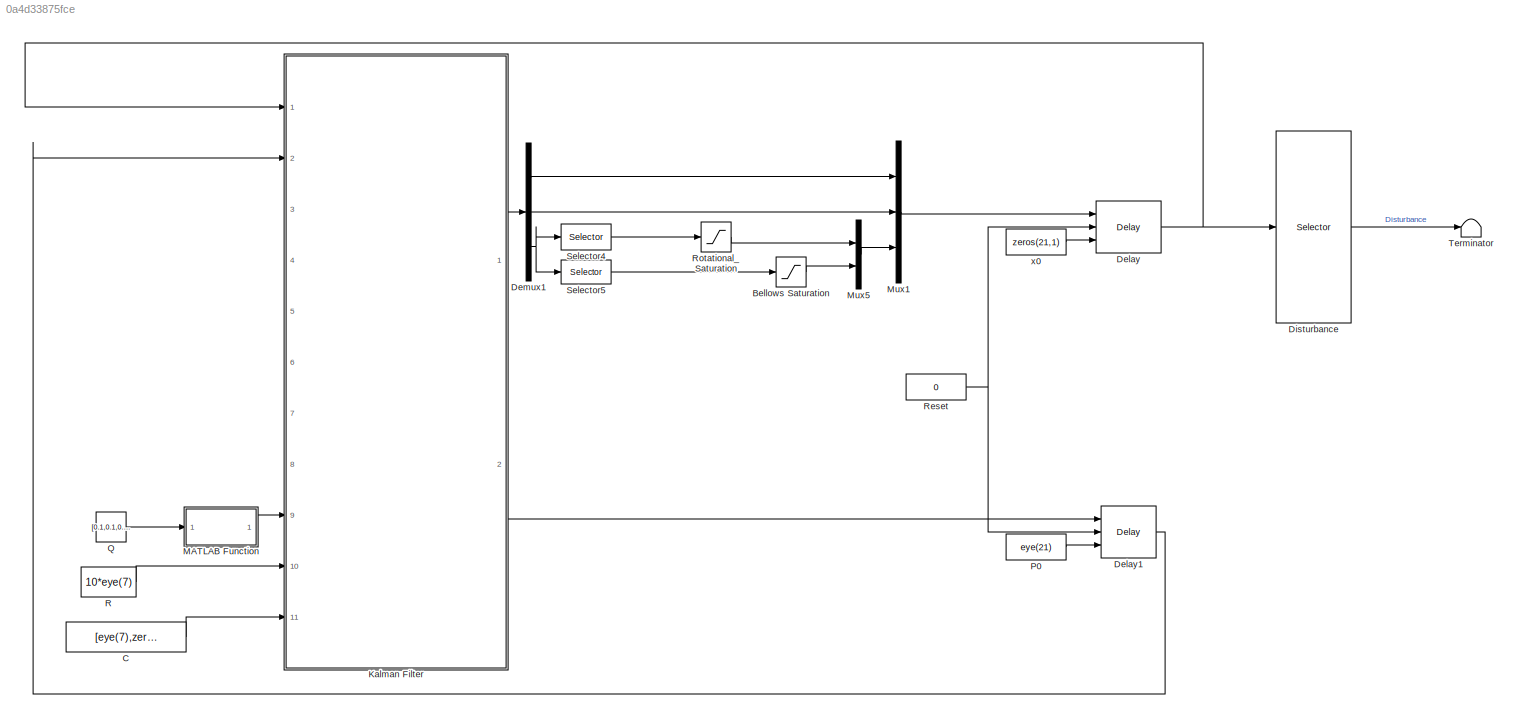
MODEL slx_0a4d33875fce
KIND model
CONFIG AbsTol = auto
CONFIG EnableMultiTasking = off
CONFIG FixedStep = 0.001
CONFIG MaxStep = auto
CONFIG MinStep = auto
CONFIG PostLoadFcn = , if any(exist('dsrtsu_mdlpostloadfcn', 'file') == [2, 3, 6]), try dsrtsu_mdlpostloadfcn('Execute', bdroot); catch fprintf('Error in PostLoadFcn (dsrtsu_mdlpostloadfcn) for model "%s":\n %s\n', bdroot, lasterr); end, end, \n
CONFIG RelTol = 1e-3
CONFIG SampleTimeConstraint = Unconstrained
CONFIG Solver = ode1
CONFIG SolverName = ode1
CONFIG StartTime = 0.0
CONFIG StopTime = Inf
BLOCK [Saturate] Bellows Saturation
  InputPortMap = u0
  LowerLimit = -1
  Ports = [1, 1]
  UpperLimit = 1
BLOCK [Constant] C
  Value = [eye(7),zeros(7,14)]
BLOCK [Delay] Delay
  DelayLength = 1
  ExternalReset = Rising
  InitialConditionSource = Input port
  InputPortMap = u0,r5,p4
  Ports = [3, 1]
BLOCK [Delay] Delay1
  DelayLength = 1
  ExternalReset = Rising
  InitialConditionSource = Input port
  InputPortMap = u0,r5,p4
  Ports = [3, 1]
BLOCK [Demux] Demux1
  DisplayOption = bar
  Outputs = 3
  Ports = [1, 3]
BLOCK [Selector] Disturbance
  IndexOptions = Index vector (dialog)
  Indices = 15:21
  InputPortWidth = 21
  OutputSizes = 1
  Ports = [1, 1]
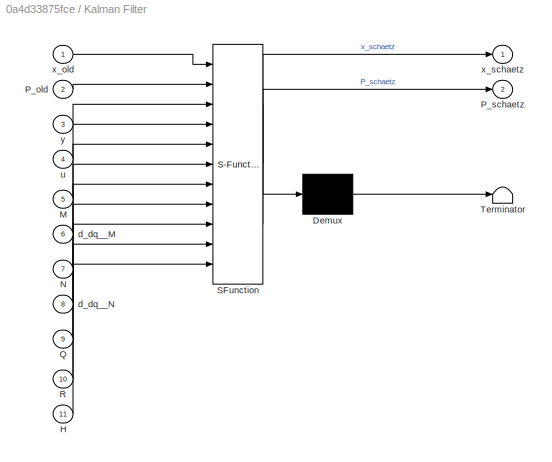
BLOCK [SubSystem] Kalman Filter
  ErrorFcn = Stateflow.Translate.translate
  PermitHierarchicalResolution = ExplicitOnly
  Ports = [11, 2]
  RequestExecContextInheritance = off
  SFBlockType = MATLAB Function
  TreatAsAtomicUnit = on
BLOCK [Demux] Kalman Filter/ Demux 
  Outputs = 1
  Ports = [1, 1]
BLOCK [S-Function] Kalman Filter/ SFunction 
  EnableBusSupport = on
  FunctionName = sf_sfun
  PortCounts = [11 3]
  Ports = [11, 3]
  SFcnIsStateOwnerBlock = off
  SFunctionDeploymentMode = off
  Tag = Stateflow S-Function BSA 112
BLOCK [Terminator] Kalman Filter/ Terminator 
BLOCK [Inport] Kalman Filter/H
  IconDisplay = Port number
  Port = 11
BLOCK [Inport] Kalman Filter/M
  IconDisplay = Port number
  Port = 5
BLOCK [Inport] Kalman Filter/N
  IconDisplay = Port number
  Port = 7
BLOCK [Inport] Kalman Filter/P_old
  IconDisplay = Port number
  Port = 2
BLOCK [Outport] Kalman Filter/P_schaetz
  IconDisplay = Port number
  Port = 2
BLOCK [Inport] Kalman Filter/Q
  IconDisplay = Port number
  Port = 9
BLOCK [Inport] Kalman Filter/R
  IconDisplay = Port number
  Port = 10
BLOCK [Inport] Kalman Filter/d_dq__M
  IconDisplay = Port number
  Port = 6
BLOCK [Inport] Kalman Filter/d_dq__N
  IconDisplay = Port number
  Port = 8
BLOCK [Inport] Kalman Filter/u
  IconDisplay = Port number
  Port = 4
BLOCK [Inport] Kalman Filter/x_old
  IconDisplay = Port number
BLOCK [Outport] Kalman Filter/x_schaetz
  IconDisplay = Port number
BLOCK [Inport] Kalman Filter/y
  IconDisplay = Port number
  Port = 3
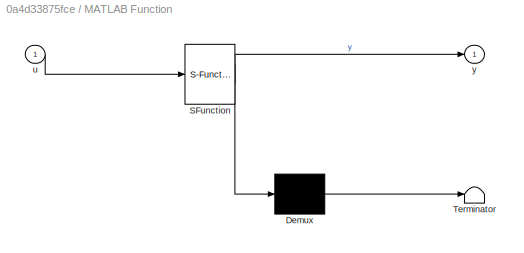
BLOCK [SubSystem] MATLAB Function
  ErrorFcn = Stateflow.Translate.translate
  PermitHierarchicalResolution = ExplicitOnly
  Ports = [1, 1]
  RequestExecContextInheritance = off
  SFBlockType = MATLAB Function
  TreatAsAtomicUnit = on
BLOCK [Demux] MATLAB Function/ Demux 
  Outputs = 1
  Ports = [1, 1]
BLOCK [S-Function] MATLAB Function/ SFunction 
  EnableBusSupport = off
  FunctionName = sf_sfun
  PortCounts = [1 2]
  Ports = [1, 2]
  SFcnIsStateOwnerBlock = off
  SFunctionDeploymentMode = off
  Tag = Stateflow S-Function BSA 2
BLOCK [Terminator] MATLAB Function/ Terminator 
BLOCK [Inport] MATLAB Function/u
  IconDisplay = Port number
BLOCK [Outport] MATLAB Function/y
  IconDisplay = Port number
BLOCK [Mux] Mux1
  DisplayOption = bar
  Inputs = 3
  Ports = [3, 1]
BLOCK [Mux] Mux5
  DisplayOption = bar
  Inputs = 2
  Ports = [2, 1]
BLOCK [Constant] P0
  Value = eye(21)
BLOCK [Constant] Q
  Value = [0.1,0.1,0.1,1,1,1,0.01,0.001,0.001,0.001,1000,1000,1000,0.1,0.25,0.25,0.25,0.025,0.025,0.025,2.5]
BLOCK [Constant] R
  Value = 10*eye(7)
BLOCK [Constant] Reset
  Value = 0
BLOCK [Saturate] Rotational_Saturation
  InputPortMap = u0
  LowerLimit = -2
  Ports = [1, 1]
  UpperLimit = 2
BLOCK [Selector] Selector4
  IndexOptions = Index vector (dialog)
  Indices = [1:3]
  InputPortWidth = 7
  OutputSizes = 1
  Ports = [1, 1]
BLOCK [Selector] Selector5
  IndexOptions = Index vector (dialog)
  Indices = [4:7]
  InputPortWidth = 7
  OutputSizes = 1
  Ports = [1, 1]
BLOCK [Terminator] Terminator
BLOCK [Constant] x0
  Value = zeros(21,1)
LINE Bellows Saturation:1 -> Mux5:2
LINE C:1 -> Kalman Filter:11
LINE Delay1:1 -> Kalman Filter:2
NET Delay:1 -> Disturbance:1, Kalman Filter:1
LINE Demux1:1 -> Mux1:1
LINE Demux1:2 -> Mux1:2
NET Demux1:3 -> Selector4:1, Selector5:1
LINE Disturbance:1 -> Terminator:1
LINE Kalman Filter:1 -> Demux1:1
LINE Kalman Filter:2 -> Delay1:1
LINE MATLAB Function:1 -> Kalman Filter:9
LINE Mux1:1 -> Delay:1
LINE Mux5:1 -> Mux1:3
LINE P0:1 -> Delay1:3
LINE Q:1 -> MATLAB Function:1
LINE R:1 -> Kalman Filter:10
NET Reset:1 -> Delay1:2, Delay:2
LINE Rotational_Saturation:1 -> Mux5:1
LINE Selector4:1 -> Rotational_Saturation:1
LINE Selector5:1 -> Bellows Saturation:1
LINE x0:1 -> Delay:3
note: NET lines group one-source signal fan-out (src -> all destinations, sorted); 1:1 wires keep LINE
CHART MATLAB Function states=1 transitions=1
  STATE_LABEL 'eML_blk_kernel()'
  STATE_LABEL 'SCRIPT:\nfunction y = makeDiag(u)\n\ny = diag(u);\n'
CHART Kalman Filter states=1 transitions=1
  STATE_LABEL 'eML_blk_kernel()'
  STATE_LABEL 'SCRIPT:\nfunction [x_schaetz,P_schaetz] = fcn(x_old,P_old,y,u,M,d_dq__M,N,d_dq__N,Q,R,H)%\n%% @author <email>\n% Inputs:   x_old - last step observer state\n%            P_old - Covariance Noise\n%            y - Measurement\n%            u - Mechanical input, i.e. tau in the paper\n%            M - Intertia matrix\n%            d_dq__M - derivative of Intertia matrix\n%            N - Gravitational Force\n...<+999ch>'
